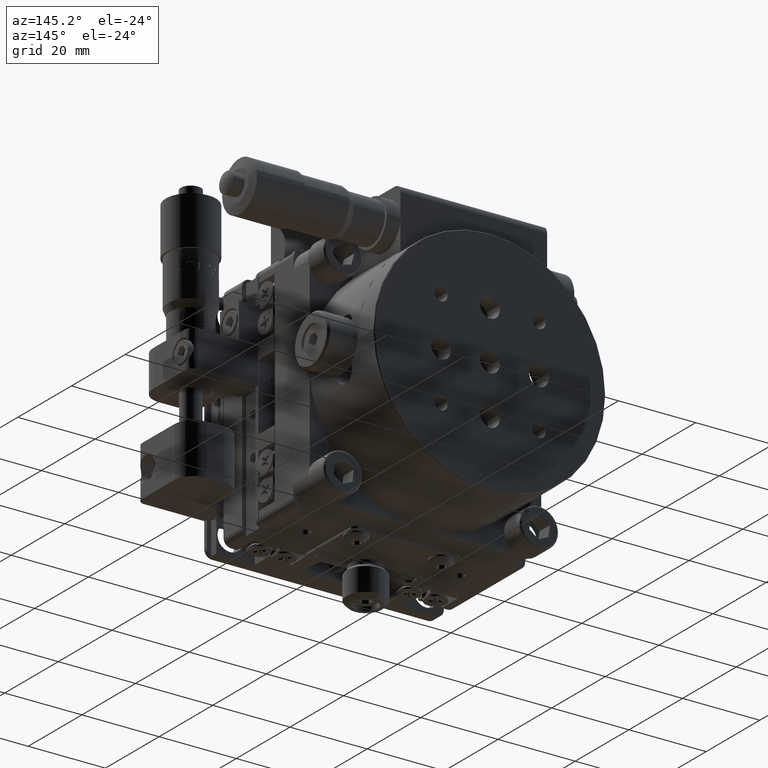
[diagram: clean part render]
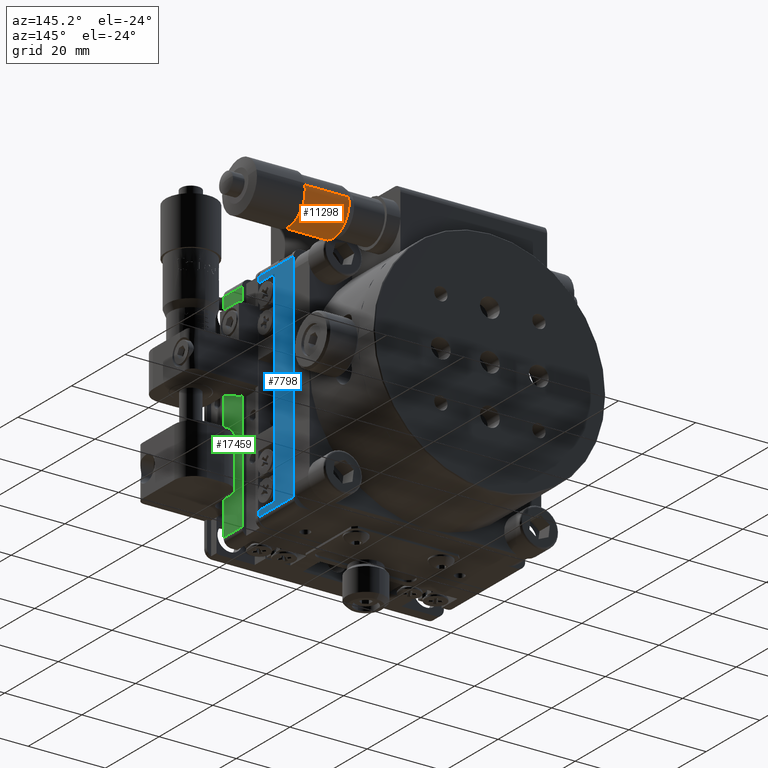
[diagram: same view with three faces highlighted in distinct colors, each labeled with its STEP entity id]
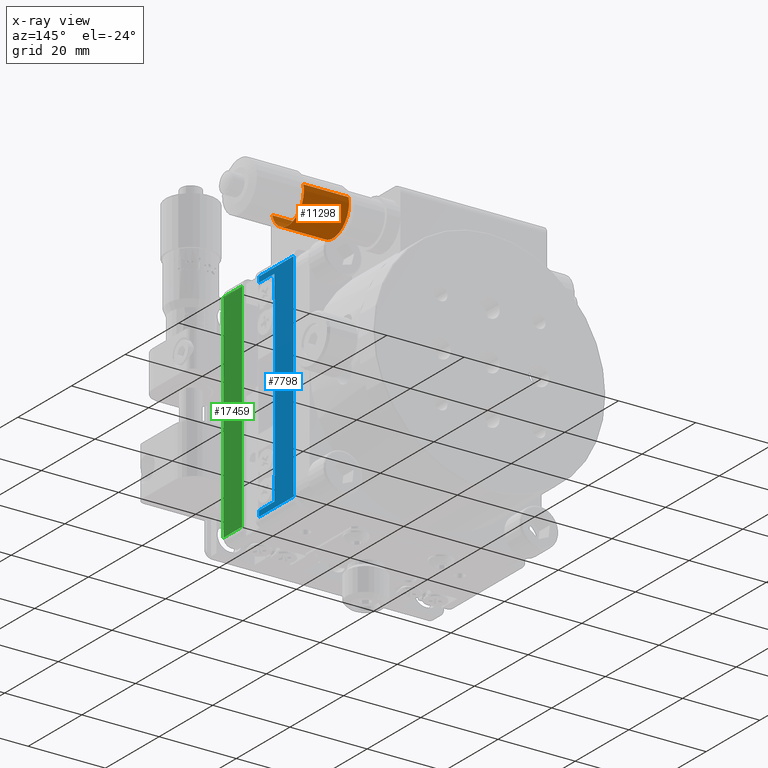
[diagram: x-ray of the same camera — body ghosted, the three highlighted faces saturated]
A machine part, auxiliary view with three faces highlighted in distinct colors.
The next image is the same camera in x-ray (body ghosted, the three faces saturated) — at least one of them is partly hidden behind the body in this view.
Their STEP definitions:

[orange] entity #11298 — the highlighted cylindrical surface (edge-blend (fillet) strip) has radius 6 mm, axis along (1, 0, -0).
#686 = EDGE_CURVE ( 'NONE', #50902, #44335, #1227, .T. ) ;
#1227 = CIRCLE ( 'NONE', #53862, 6.000000000000000888 ) ;
#1732 = CARTESIAN_POINT ( 'NONE',  ( 44.00000000000000711, 57.11865630192792054, 32.46398047802338027 ) ) ;
#3726 = CARTESIAN_POINT ( 'NONE',  ( 32.28438290688971790, 51.29999999999989768, 30.99999999999998579 ) ) ;
#4662 = CARTESIAN_POINT ( 'NONE',  ( 32.28438290688971790, 57.11865630192789212, 32.46398047802338738 ) ) ;
#5456 = CYLINDRICAL_SURFACE ( 'NONE', #18602, 6.000000000000000888 ) ;
#5594 = DIRECTION ( 'NONE',  ( 1.000000000000000000, 1.499041359689640377E-16, -1.900606589895705051E-16 ) ) ;
#6451 = CARTESIAN_POINT ( 'NONE',  ( 44.00000000000000711, 51.29999999999992610, 30.99999999999997868 ) ) ;
#9233 = CARTESIAN_POINT ( 'NONE',  ( 73.04102306920762544, 51.29999999999992610, 30.99999999999997158 ) ) ;
#11298 = ADVANCED_FACE ( 'NONE', ( #14726 ), #5456, .T. ) ;
#14430 = DIRECTION ( 'NONE',  ( 1.000000000000000000, 1.499041359689640377E-16, -1.900606589895705051E-16 ) ) ;
#14726 = FACE_OUTER_BOUND ( 'NONE', #37314, .T. ) ;
#18602 = AXIS2_PLACEMENT_3D ( 'NONE', #9233, #14430, #50007 ) ;
#18944 = VERTEX_POINT ( 'NONE', #4662 ) ;
#22162 = VECTOR ( 'NONE', #40970, 1000.000000000000000 ) ;
#23299 = CARTESIAN_POINT ( 'NONE',  ( 73.04102306920762544, 57.11865630192792054, 32.46398047802337317 ) ) ;
#24927 = CARTESIAN_POINT ( 'NONE',  ( 32.28438290688971790, 45.48134369807189614, 29.53601952197656999 ) ) ;
#26398 = AXIS2_PLACEMENT_3D ( 'NONE', #3726, #30341, #52870 ) ;
#29428 = LINE ( 'NONE', #51105, #39477 ) ;
#30341 = DIRECTION ( 'NONE',  ( 1.000000000000000000, 1.499041359689640377E-16, -1.900606589895705051E-16 ) ) ;
#32378 = ORIENTED_EDGE ( 'NONE', *, *, #52461, .F. ) ;
#32904 = CARTESIAN_POINT ( 'NONE',  ( 44.00000000000000711, 45.48134369807193167, 29.53601952197657710 ) ) ;
#37314 = EDGE_LOOP ( 'NONE', ( #32378, #50006, #38719, #54425 ) ) ;
#38719 = ORIENTED_EDGE ( 'NONE', *, *, #52058, .T. ) ;
#39477 = VECTOR ( 'NONE', #51681, 1000.000000000000000 ) ;
#39975 = VERTEX_POINT ( 'NONE', #24927 ) ;
#40897 = DIRECTION ( 'NONE',  ( 0.000000000000000000, 0.9697760503213324057, 0.2439967463372336720 ) ) ;
#40970 = DIRECTION ( 'NONE',  ( 1.000000000000000000, 1.499041359689640377E-16, -1.900606589895705051E-16 ) ) ;
#44335 = VERTEX_POINT ( 'NONE', #1732 ) ;
#49932 = LINE ( 'NONE', #23299, #22162 ) ;
#50006 = ORIENTED_EDGE ( 'NONE', *, *, #56067, .T. ) ;
#50007 = DIRECTION ( 'NONE',  ( 0.000000000000000000, 0.9697760503213324057, 0.2439967463372336720 ) ) ;
#50902 = VERTEX_POINT ( 'NONE', #32904 ) ;
#51105 = CARTESIAN_POINT ( 'NONE',  ( 73.04102306920762544, 45.48134369807193167, 29.53601952197656999 ) ) ;
#51338 = CIRCLE ( 'NONE', #26398, 6.000000000000000888 ) ;
#51681 = DIRECTION ( 'NONE',  ( 1.000000000000000000, 1.499041359689640377E-16, -1.900606589895705051E-16 ) ) ;
#52058 = EDGE_CURVE ( 'NONE', #18944, #44335, #49932, .T. ) ;
#52461 = EDGE_CURVE ( 'NONE', #39975, #50902, #29428, .T. ) ;
#52870 = DIRECTION ( 'NONE',  ( 0.000000000000000000, 0.9697760503213324057, 0.2439967463372336720 ) ) ;
#53862 = AXIS2_PLACEMENT_3D ( 'NONE', #6451, #5594, #40897 ) ;
#54425 = ORIENTED_EDGE ( 'NONE', *, *, #686, .F. ) ;
#56067 = EDGE_CURVE ( 'NONE', #39975, #18944, #51338, .T. ) ;

[blue] entity #7798 — the highlighted planar face has unit normal (1, 0, -0).
#621 = ORIENTED_EDGE ( 'NONE', *, *, #31385, .T. ) ;
#1154 = CARTESIAN_POINT ( 'NONE',  ( 30.00000000000000711, 20.39999999999999858, 28.00000000000002842 ) ) ;
#1528 = CARTESIAN_POINT ( 'NONE',  ( 30.00000000000000711, 26.19999999999999929, 20.50000000000008527 ) ) ;
#1560 = LINE ( 'NONE', #54492, #56983 ) ;
#5214 = ORIENTED_EDGE ( 'NONE', *, *, #57175, .T. ) ;
#5932 = CARTESIAN_POINT ( 'NONE',  ( 30.00000000000000711, 26.29999999999978044, -20.49999999999992539 ) ) ;
#6233 = VERTEX_POINT ( 'NONE', #23708 ) ;
#6649 = CARTESIAN_POINT ( 'NONE',  ( 30.00000000000000711, 20.39999999999999858, -26.49999999999986500 ) ) ;
#7416 = EDGE_CURVE ( 'NONE', #36986, #44865, #33836, .T. ) ;
#7798 = ADVANCED_FACE ( 'NONE', ( #49635 ), #45903, .T. ) ;
#8738 = VERTEX_POINT ( 'NONE', #41379 ) ;
#9890 = VERTEX_POINT ( 'NONE', #5932 ) ;
#10679 = VERTEX_POINT ( 'NONE', #13460 ) ;
#10917 = ORIENTED_EDGE ( 'NONE', *, *, #7416, .F. ) ;
#10977 = DIRECTION ( 'NONE',  ( -5.551115123125780853E-17, -1.445602896647340149E-16, -1.000000000000000000 ) ) ;
#11154 = LINE ( 'NONE', #45600, #41327 ) ;
#13170 = VERTEX_POINT ( 'NONE', #43579 ) ;
#13460 = CARTESIAN_POINT ( 'NONE',  ( 30.00000000000000711, 26.19999999999999929, -26.49999999999992184 ) ) ;
#13649 = VERTEX_POINT ( 'NONE', #6649 ) ;
#14054 = DIRECTION ( 'NONE',  ( -5.551115123125781470E-17, -6.162975822039153361E-33, -1.000000000000000000 ) ) ;
#14433 = CARTESIAN_POINT ( 'NONE',  ( 30.00000000000000711, 26.29999999999978044, -20.49999999999992539 ) ) ;
#14766 = LINE ( 'NONE', #1154, #17053 ) ;
#15996 = ORIENTED_EDGE ( 'NONE', *, *, #52669, .F. ) ;
#16938 = CARTESIAN_POINT ( 'NONE',  ( 30.00000000000000711, 33.29999999999999716, 28.00000000000002842 ) ) ;
#17053 = VECTOR ( 'NONE', #37035, 1000.000000000000000 ) ;
#20198 = LINE ( 'NONE', #50878, #56976 ) ;
#20659 = VECTOR ( 'NONE', #51778, 1000.000000000000000 ) ;
#20836 = LINE ( 'NONE', #34135, #20659 ) ;
#21212 = AXIS2_PLACEMENT_3D ( 'NONE', #54825, #27372, #14054 ) ;
#23323 = EDGE_CURVE ( 'NONE', #10679, #13649, #25614, .T. ) ;
#23516 = LINE ( 'NONE', #45538, #24204 ) ;
#23708 = CARTESIAN_POINT ( 'NONE',  ( 30.00000000000000711, 33.29999999999999716, -28.00000000000000711 ) ) ;
#23809 = DIRECTION ( 'NONE',  ( -5.551115123125781470E-17, -6.162975822039153361E-33, -1.000000000000000000 ) ) ;
#24098 = ORIENTED_EDGE ( 'NONE', *, *, #39465, .T. ) ;
#24204 = VECTOR ( 'NONE', #23809, 1000.000000000000000 ) ;
#24507 = EDGE_CURVE ( 'NONE', #8738, #10679, #23516, .T. ) ;
#24642 = VECTOR ( 'NONE', #32075, 1000.000000000000000 ) ;
#25614 = LINE ( 'NONE', #38643, #55573 ) ;
#25953 = EDGE_CURVE ( 'NONE', #41223, #9890, #20836, .T. ) ;
#27372 = DIRECTION ( 'NONE',  ( 1.000000000000000000, 3.786670474884318105E-17, -5.551115123125781470E-17 ) ) ;
#27889 = ORIENTED_EDGE ( 'NONE', *, *, #25953, .T. ) ;
#28459 = CARTESIAN_POINT ( 'NONE',  ( 30.00000000000000711, 20.39999999999999858, 28.00000000000002842 ) ) ;
#29158 = ORIENTED_EDGE ( 'NONE', *, *, #44698, .T. ) ;
#31073 = EDGE_CURVE ( 'NONE', #55886, #13170, #33710, .T. ) ;
#31328 = EDGE_CURVE ( 'NONE', #40565, #6233, #1560, .T. ) ;
#31385 = EDGE_CURVE ( 'NONE', #36986, #55886, #54768, .T. ) ;
#31986 = DIRECTION ( 'NONE',  ( -5.551115123125781470E-17, -6.162975822039153361E-33, -1.000000000000000000 ) ) ;
#32075 = DIRECTION ( 'NONE',  ( 3.786670474884317489E-17, -1.000000000000000000, 1.232595164407830946E-32 ) ) ;
#32500 = DIRECTION ( 'NONE',  ( -3.786670474884317489E-17, 1.000000000000000000, -1.232595164407830946E-32 ) ) ;
#32788 = DIRECTION ( 'NONE',  ( -5.551115123125781470E-17, -6.162975822039153361E-33, -1.000000000000000000 ) ) ;
#33710 = LINE ( 'NONE', #47037, #45940 ) ;
#33836 = LINE ( 'NONE', #52029, #44288 ) ;
#33885 = VECTOR ( 'NONE', #32788, 1000.000000000000000 ) ;
#34135 = CARTESIAN_POINT ( 'NONE',  ( 30.00000000000000711, 26.30000000000021032, 20.50000000000008527 ) ) ;
#35140 = DIRECTION ( 'NONE',  ( 3.786670474884374188E-17, -1.000000000000000000, 1.016906865227783551E-14 ) ) ;
#36333 = CARTESIAN_POINT ( 'NONE',  ( 30.00000000000000711, 20.39999999999999858, -28.00000000000000711 ) ) ;
#36390 = LINE ( 'NONE', #54021, #54024 ) ;
#36986 = VERTEX_POINT ( 'NONE', #37436 ) ;
#37035 = DIRECTION ( 'NONE',  ( -5.551115123125781470E-17, -6.162975822039153361E-33, -1.000000000000000000 ) ) ;
#37115 = ORIENTED_EDGE ( 'NONE', *, *, #44369, .T. ) ;
#37436 = CARTESIAN_POINT ( 'NONE',  ( 30.00000000000000711, 20.39999999999999858, 28.00000000000002842 ) ) ;
#38017 = CARTESIAN_POINT ( 'NONE',  ( 30.00000000000000711, 20.39999999999999858, 26.50000000000014921 ) ) ;
#38643 = CARTESIAN_POINT ( 'NONE',  ( 30.00000000000000711, 26.19999999999999929, -26.49999999999992184 ) ) ;
#39465 = EDGE_CURVE ( 'NONE', #9890, #8738, #54062, .T. ) ;
#39852 = VERTEX_POINT ( 'NONE', #1528 ) ;
#40565 = VERTEX_POINT ( 'NONE', #36333 ) ;
#41223 = VERTEX_POINT ( 'NONE', #48928 ) ;
#41327 = VECTOR ( 'NONE', #31986, 1000.000000000000000 ) ;
#41379 = CARTESIAN_POINT ( 'NONE',  ( 30.00000000000000711, 26.19999999999999929, -20.49999999999992539 ) ) ;
#42228 = ORIENTED_EDGE ( 'NONE', *, *, #31073, .T. ) ;
#43579 = CARTESIAN_POINT ( 'NONE',  ( 30.00000000000000711, 26.19999999999999929, 26.50000000000008171 ) ) ;
#44288 = VECTOR ( 'NONE', #51475, 1000.000000000000000 ) ;
#44369 = EDGE_CURVE ( 'NONE', #13649, #40565, #14766, .T. ) ;
#44698 = EDGE_CURVE ( 'NONE', #39852, #41223, #36390, .T. ) ;
#44865 = VERTEX_POINT ( 'NONE', #16938 ) ;
#45538 = CARTESIAN_POINT ( 'NONE',  ( 30.00000000000000711, 26.19999999999999929, -26.49999999999992184 ) ) ;
#45600 = CARTESIAN_POINT ( 'NONE',  ( 30.00000000000000711, 33.29999999999999716, 28.00000000000002842 ) ) ;
#45903 = PLANE ( 'NONE',  #21212 ) ;
#45940 = VECTOR ( 'NONE', #50788, 1000.000000000000000 ) ;
#47037 = CARTESIAN_POINT ( 'NONE',  ( 30.00000000000000711, 26.19999999999999929, 26.50000000000008171 ) ) ;
#47613 = ORIENTED_EDGE ( 'NONE', *, *, #31328, .T. ) ;
#48928 = CARTESIAN_POINT ( 'NONE',  ( 30.00000000000000711, 26.30000000000021032, 20.50000000000008527 ) ) ;
#49523 = ORIENTED_EDGE ( 'NONE', *, *, #23323, .T. ) ;
#49635 = FACE_OUTER_BOUND ( 'NONE', #52701, .T. ) ;
#49688 = DIRECTION ( 'NONE',  ( -3.786670474884317489E-17, 1.000000000000000000, -1.232595164407830946E-32 ) ) ;
#50517 = ORIENTED_EDGE ( 'NONE', *, *, #24507, .T. ) ;
#50788 = DIRECTION ( 'NONE',  ( -3.786670474884380351E-17, 1.000000000000000000, -1.136542967019287554E-14 ) ) ;
#50878 = CARTESIAN_POINT ( 'NONE',  ( 30.00000000000000711, 26.19999999999999929, 26.50000000000008171 ) ) ;
#51475 = DIRECTION ( 'NONE',  ( -3.786670474884317489E-17, 1.000000000000000000, -1.232595164407830946E-32 ) ) ;
#51778 = DIRECTION ( 'NONE',  ( -5.551115123125742026E-17, -1.049296151322556363E-14, -1.000000000000000000 ) ) ;
#52029 = CARTESIAN_POINT ( 'NONE',  ( 30.00000000000000711, 20.39999999999999858, 28.00000000000002842 ) ) ;
#52669 = EDGE_CURVE ( 'NONE', #44865, #6233, #11154, .T. ) ;
#52701 = EDGE_LOOP ( 'NONE', ( #42228, #5214, #29158, #27889, #24098, #50517, #49523, #37115, #47613, #15996, #10917, #621 ) ) ;
#54021 = CARTESIAN_POINT ( 'NONE',  ( 30.00000000000000711, 26.30000000000021032, 20.50000000000008527 ) ) ;
#54024 = VECTOR ( 'NONE', #49688, 1000.000000000000000 ) ;
#54062 = LINE ( 'NONE', #14433, #24642 ) ;
#54492 = CARTESIAN_POINT ( 'NONE',  ( 30.00000000000000711, 20.39999999999999858, -28.00000000000000711 ) ) ;
#54768 = LINE ( 'NONE', #28459, #33885 ) ;
#54825 = CARTESIAN_POINT ( 'NONE',  ( 30.00000000000000711, 20.39999999999999858, 28.00000000000002842 ) ) ;
#55573 = VECTOR ( 'NONE', #35140, 1000.000000000000000 ) ;
#55886 = VERTEX_POINT ( 'NONE', #38017 ) ;
#56976 = VECTOR ( 'NONE', #10977, 1000.000000000000000 ) ;
#56983 = VECTOR ( 'NONE', #32500, 1000.000000000000000 ) ;
#57175 = EDGE_CURVE ( 'NONE', #13170, #39852, #20198, .T. ) ;

[green] entity #17459 — the highlighted planar face has unit normal (-1, -0, 0).
#1435 = CARTESIAN_POINT ( 'NONE',  ( 30.00000000000000000, 14.10000000000002984, -27.99999999999999645 ) ) ;
#4788 = VERTEX_POINT ( 'NONE', #1435 ) ;
#5834 = VECTOR ( 'NONE', #42954, 1000.000000000000000 ) ;
#5985 = VERTEX_POINT ( 'NONE', #22852 ) ;
#8669 = DIRECTION ( 'NONE',  ( 0.000000000000000000, 0.000000000000000000, 1.000000000000000000 ) ) ;
#11997 = FACE_OUTER_BOUND ( 'NONE', #41849, .T. ) ;
#12272 = LINE ( 'NONE', #29903, #5834 ) ;
#13009 = LINE ( 'NONE', #30644, #51243 ) ;
#15101 = EDGE_CURVE ( 'NONE', #5985, #4788, #12272, .T. ) ;
#15414 = AXIS2_PLACEMENT_3D ( 'NONE', #16325, #21786, #57109 ) ;
#16325 = CARTESIAN_POINT ( 'NONE',  ( 30.00000000000000000, 14.10000000000002984, -18.69999999999999574 ) ) ;
#16380 = LINE ( 'NONE', #47345, #23594 ) ;
#16992 = EDGE_CURVE ( 'NONE', #26766, #23097, #30078, .T. ) ;
#17459 = ADVANCED_FACE ( 'NONE', ( #11997 ), #34238, .F. ) ;
#19579 = ORIENTED_EDGE ( 'NONE', *, *, #16992, .T. ) ;
#21000 = DIRECTION ( 'NONE',  ( 0.000000000000000000, 1.894780628693600864E-15, -1.000000000000000000 ) ) ;
#21786 = DIRECTION ( 'NONE',  ( -1.000000000000000000, -0.000000000000000000, 0.000000000000000000 ) ) ;
#22852 = CARTESIAN_POINT ( 'NONE',  ( 30.00000000000000000, 7.200000000000158273, -27.99999999999999645 ) ) ;
#23097 = VERTEX_POINT ( 'NONE', #28133 ) ;
#23594 = VECTOR ( 'NONE', #21000, 1000.000000000000000 ) ;
#26766 = VERTEX_POINT ( 'NONE', #52105 ) ;
#27554 = ORIENTED_EDGE ( 'NONE', *, *, #41993, .T. ) ;
#27904 = ORIENTED_EDGE ( 'NONE', *, *, #55492, .T. ) ;
#28133 = CARTESIAN_POINT ( 'NONE',  ( 30.00000000000000000, 7.200000000000052580, 27.99999999999999645 ) ) ;
#29903 = CARTESIAN_POINT ( 'NONE',  ( 30.00000000000000000, 14.10000000000002984, -27.99999999999999645 ) ) ;
#30078 = LINE ( 'NONE', #43665, #54951 ) ;
#30644 = CARTESIAN_POINT ( 'NONE',  ( 30.00000000000000000, 14.10000000000002984, 28.90000000000000213 ) ) ;
#34238 = PLANE ( 'NONE',  #15414 ) ;
#41849 = EDGE_LOOP ( 'NONE', ( #27554, #19579, #27904, #46139 ) ) ;
#41993 = EDGE_CURVE ( 'NONE', #4788, #26766, #13009, .T. ) ;
#42954 = DIRECTION ( 'NONE',  ( 0.000000000000000000, 1.000000000000000000, 0.000000000000000000 ) ) ;
#43399 = DIRECTION ( 'NONE',  ( 0.000000000000000000, -1.000000000000000000, 0.000000000000000000 ) ) ;
#43665 = CARTESIAN_POINT ( 'NONE',  ( 30.00000000000000000, 14.10000000000002984, 27.99999999999999645 ) ) ;
#46139 = ORIENTED_EDGE ( 'NONE', *, *, #15101, .T. ) ;
#47345 = CARTESIAN_POINT ( 'NONE',  ( 30.00000000000000000, 7.200000000000162714, -30.00000000000000000 ) ) ;
#51243 = VECTOR ( 'NONE', #8669, 1000.000000000000000 ) ;
#52105 = CARTESIAN_POINT ( 'NONE',  ( 30.00000000000000000, 14.10000000000002984, 27.99999999999999645 ) ) ;
#54951 = VECTOR ( 'NONE', #43399, 1000.000000000000000 ) ;
#55492 = EDGE_CURVE ( 'NONE', #23097, #5985, #16380, .T. ) ;
#57109 = DIRECTION ( 'NONE',  ( 0.000000000000000000, 0.000000000000000000, 1.000000000000000000 ) ) ;